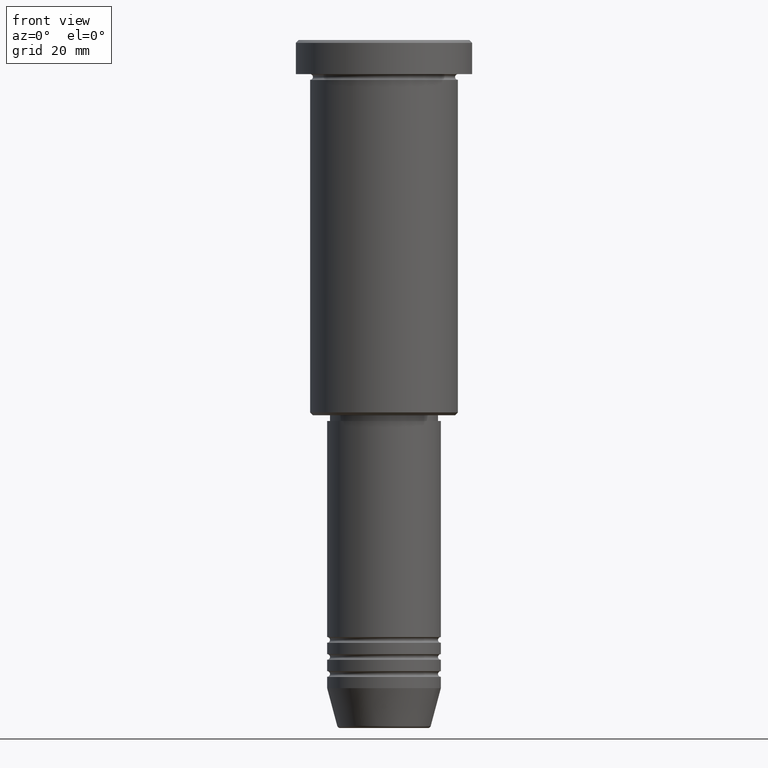
[diagram: clean part render]
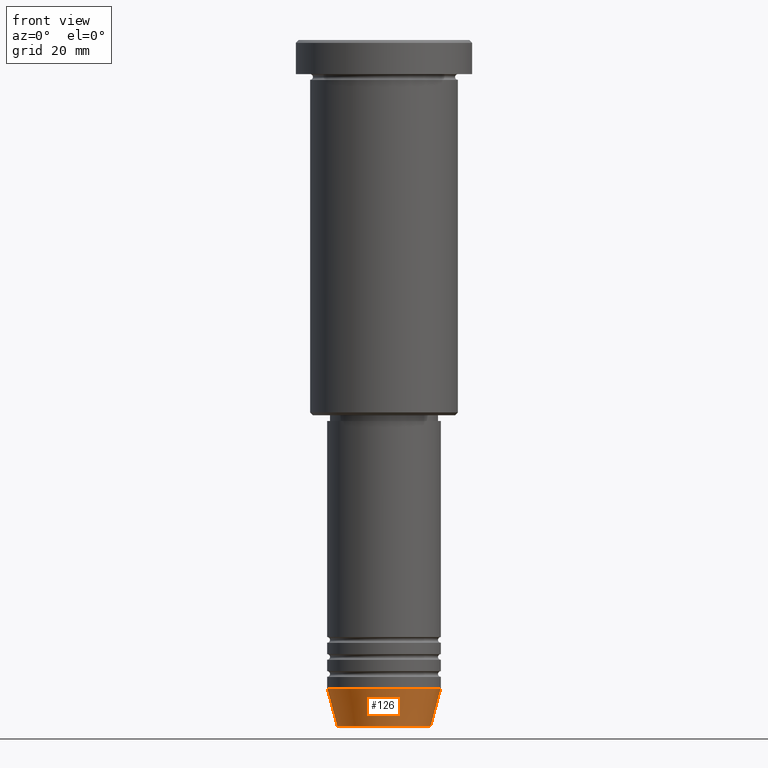
[diagram: same view with one face highlighted and labeled with its STEP entity id]
A machine part, front view. The second image highlights one B-rep face of the part: STEP entity #126.
In plain terms, the highlighted conical surface has half-angle 15 deg.
Its self-contained STEP definition (entity closure, byte-faithful):
#15 = LINE ( 'NONE', #382, #103 ) ;
#46 = AXIS2_PLACEMENT_3D ( 'NONE', #462, #823, #565 ) ;
#57 = DIRECTION ( 'NONE',  ( 1.000000000000000000, 0.000000000000000000, 0.000000000000000000 ) ) ;
#65 = CIRCLE ( 'NONE', #46, 8.223655072137191269 ) ;
#103 = VECTOR ( 'NONE', #580, 1000.000000000000000 ) ;
#107 = EDGE_CURVE ( 'NONE', #681, #897, #945, .T. ) ;
#126 = ADVANCED_FACE ( 'NONE', ( #882 ), #1151, .T. ) ;
#128 = EDGE_LOOP ( 'NONE', ( #784, #766, #500, #529 ) ) ;
#157 = AXIS2_PLACEMENT_3D ( 'NONE', #817, #332, #57 ) ;
#182 = CARTESIAN_POINT ( 'NONE',  ( -10.00000000000000000, 1.224646799147353256E-15, -114.0000000000000142 ) ) ;
#332 = DIRECTION ( 'NONE',  ( -0.000000000000000000, -0.000000000000000000, 1.000000000000000000 ) ) ;
#382 = CARTESIAN_POINT ( 'NONE',  ( -10.00000000000000000, 1.224646799147353256E-15, -114.0000000000000142 ) ) ;
#412 = VERTEX_POINT ( 'NONE', #956 ) ;
#455 = DIRECTION ( 'NONE',  ( 1.000000000000000000, 0.000000000000000000, 0.000000000000000000 ) ) ;
#462 = CARTESIAN_POINT ( 'NONE',  ( 0.000000000000000000, 0.000000000000000000, -120.6294095225512706 ) ) ;
#500 = ORIENTED_EDGE ( 'NONE', *, *, #701, .T. ) ;
#529 = ORIENTED_EDGE ( 'NONE', *, *, #107, .F. ) ;
#546 = CARTESIAN_POINT ( 'NONE',  ( 10.00000000000000000, 0.000000000000000000, -114.0000000000000142 ) ) ;
#565 = DIRECTION ( 'NONE',  ( 1.000000000000000000, 0.000000000000000000, 0.000000000000000000 ) ) ;
#580 = DIRECTION ( 'NONE',  ( -0.2588190451025213501, 3.169619151431772337E-17, 0.9659258262890680902 ) ) ;
#605 = VERTEX_POINT ( 'NONE', #721 ) ;
#610 = AXIS2_PLACEMENT_3D ( 'NONE', #1177, #622, #455 ) ;
#622 = DIRECTION ( 'NONE',  ( -0.000000000000000000, -0.000000000000000000, 1.000000000000000000 ) ) ;
#681 = VERTEX_POINT ( 'NONE', #182 ) ;
#701 = EDGE_CURVE ( 'NONE', #605, #897, #825, .T. ) ;
#721 = CARTESIAN_POINT ( 'NONE',  ( 8.223655072137191269, 0.000000000000000000, -120.6294095225512706 ) ) ;
#729 = EDGE_CURVE ( 'NONE', #412, #681, #15, .T. ) ;
#766 = ORIENTED_EDGE ( 'NONE', *, *, #861, .T. ) ;
#784 = ORIENTED_EDGE ( 'NONE', *, *, #729, .F. ) ;
#817 = CARTESIAN_POINT ( 'NONE',  ( 0.000000000000000000, 0.000000000000000000, -114.0000000000000142 ) ) ;
#823 = DIRECTION ( 'NONE',  ( -0.000000000000000000, -0.000000000000000000, 1.000000000000000000 ) ) ;
#825 = LINE ( 'NONE', #926, #1172 ) ;
#861 = EDGE_CURVE ( 'NONE', #412, #605, #65, .T. ) ;
#882 = FACE_OUTER_BOUND ( 'NONE', #128, .T. ) ;
#897 = VERTEX_POINT ( 'NONE', #546 ) ;
#926 = CARTESIAN_POINT ( 'NONE',  ( 10.00000000000000000, 0.000000000000000000, -114.0000000000000142 ) ) ;
#945 = CIRCLE ( 'NONE', #610, 10.00000000000000000 ) ;
#956 = CARTESIAN_POINT ( 'NONE',  ( -8.223655072137191269, 1.115877042642912054E-15, -120.6294095225512706 ) ) ;
#1104 = DIRECTION ( 'NONE',  ( 0.2588190451025213501, 0.000000000000000000, 0.9659258262890680902 ) ) ;
#1151 = CONICAL_SURFACE ( 'NONE', #157, 10.00000000000000000, 0.2617993877991500740 ) ;
#1172 = VECTOR ( 'NONE', #1104, 1000.000000000000000 ) ;
#1177 = CARTESIAN_POINT ( 'NONE',  ( 0.000000000000000000, 0.000000000000000000, -114.0000000000000142 ) ) ;